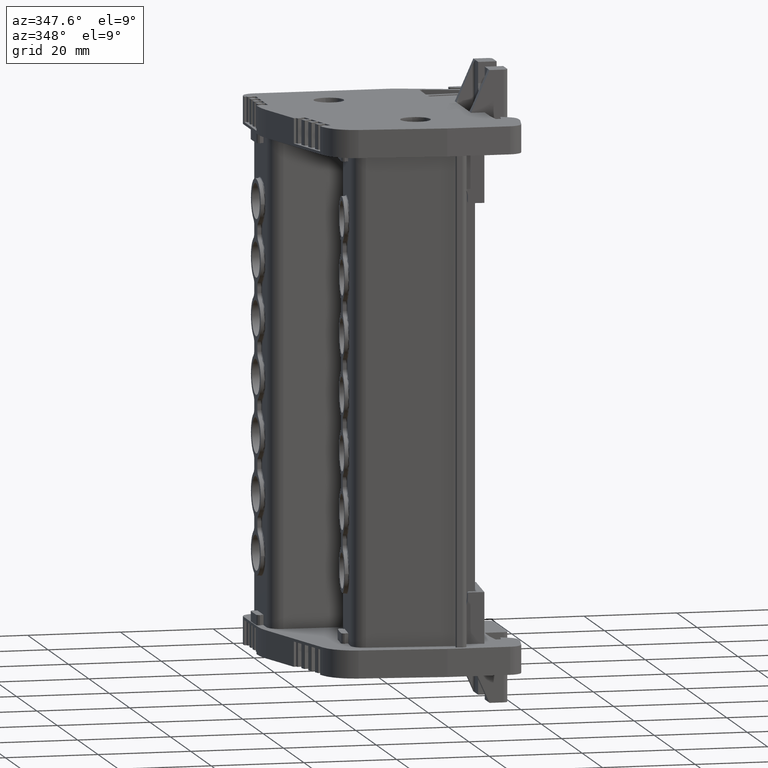
[diagram: clean part render]
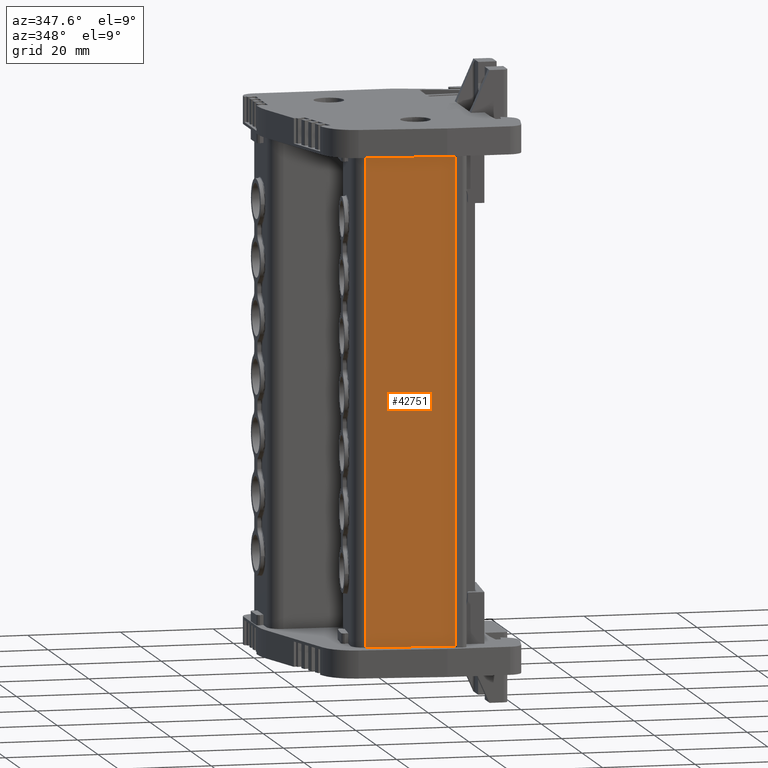
[diagram: same view with one face highlighted and labeled with its STEP entity id]
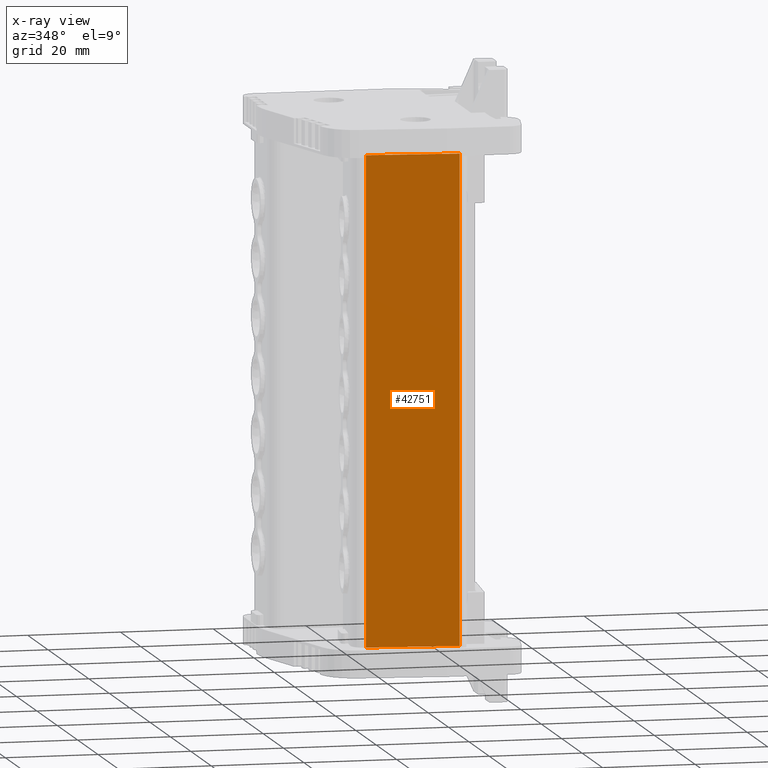
[diagram: x-ray of the same camera — body ghosted, the highlighted face saturated]
A machine part, auxiliary view. The second image highlights one B-rep face of the part: STEP entity #42751.
The next image is the same camera in x-ray: the body ghosted, the highlighted face saturated — about 0% of this face is hidden behind the body in this view.
In plain terms, the highlighted planar face has unit normal (-0.1045, -0.9945, -0).
Its self-contained STEP definition (entity closure, byte-faithful):
#1572 = CARTESIAN_POINT ( 'NONE',  ( 1902.331920234772500, 759.6777147019812400, 111.0203038005997800 ) ) ;
#1600 = CARTESIAN_POINT ( 'NONE',  ( 1882.548481238868100, 761.7570257132908900, 111.0203038005997800 ) ) ;
#1621 = CARTESIAN_POINT ( 'NONE',  ( 1902.331920234774800, 759.6777147020045500, 6.000455880789901100 ) ) ;
#1630 = CARTESIAN_POINT ( 'NONE',  ( 1882.548481238870200, 761.7570257133143100, 6.000455880789984600 ) ) ;
#21764 = VECTOR ( 'NONE', #24418, 1000.000000000000000 ) ;
#21789 = VECTOR ( 'NONE', #24363, 1000.000000000000200 ) ;
#22819 = VECTOR ( 'NONE', #23924, 1000.000000000000200 ) ;
#22894 = VECTOR ( 'NONE', #24193, 1000.000000000000000 ) ;
#23913 = LINE ( 'NONE', #23952, #22819 ) ;
#23924 = DIRECTION ( 'NONE',  ( -0.9945219592039794600, 0.1045278559096953800, 4.433591255884230300E-015 ) ) ;
#23952 = CARTESIAN_POINT ( 'NONE',  ( 1890.866910406003900, 760.8827287133032100, 6.000455880789957100 ) ) ;
#24177 = LINE ( 'NONE', #24200, #22894 ) ;
#24193 = DIRECTION ( 'NONE',  ( 1.899834580507928800E-014, 2.228490473105030800E-013, -1.000000000000000000 ) ) ;
#24200 = CARTESIAN_POINT ( 'NONE',  ( 1902.331920234772700, 759.6777147019812400, 110.6204558807898300 ) ) ;
#24340 = LINE ( 'NONE', #24413, #21789 ) ;
#24363 = DIRECTION ( 'NONE',  ( 0.9945219592039794600, -0.1045278559096953900, 0.0000000000000000000 ) ) ;
#24413 = CARTESIAN_POINT ( 'NONE',  ( 1890.866910406001800, 760.8827287132797900, 111.0203038005997800 ) ) ;
#24418 = DIRECTION ( 'NONE',  ( 1.899834580507928800E-014, 2.228490473105030800E-013, -1.000000000000000000 ) ) ;
#24434 = CARTESIAN_POINT ( 'NONE',  ( 1882.548481238868100, 761.7570257132910000, 110.6204558807898200 ) ) ;
#24444 = LINE ( 'NONE', #24434, #21764 ) ;
#27392 = AXIS2_PLACEMENT_3D ( 'NONE', #29044, #29032, #29039 ) ;
#29031 = PLANE ( 'NONE',  #27392 ) ;
#29032 = DIRECTION ( 'NONE',  ( -0.1045278559096954200, -0.9945219592039795700, -2.236141274930544100E-013 ) ) ;
#29039 = DIRECTION ( 'NONE',  ( 0.9945219592039795700, -0.1045278559096954200, -3.517428196429380800E-015 ) ) ;
#29044 = CARTESIAN_POINT ( 'NONE',  ( 1890.866910406001800, 760.8827287132799000, 110.6204558807899000 ) ) ;
#29048 = FACE_OUTER_BOUND ( 'NONE', #39923, .T. ) ;
#39923 = EDGE_LOOP ( 'NONE', ( #51433, #51448, #51454, #51435 ) ) ;
#41973 = EDGE_CURVE ( 'NONE', #58855, #58868, #23913, .T. ) ;
#42019 = EDGE_CURVE ( 'NONE', #58863, #58855, #24177, .T. ) ;
#42064 = EDGE_CURVE ( 'NONE', #58895, #58863, #24340, .T. ) ;
#42074 = EDGE_CURVE ( 'NONE', #58895, #58868, #24444, .T. ) ;
#42751 = ADVANCED_FACE ( 'NONE', ( #29048 ), #29031, .T. ) ;
#51433 = ORIENTED_EDGE ( 'NONE', *, *, #42064, .F. ) ;
#51435 = ORIENTED_EDGE ( 'NONE', *, *, #42019, .F. ) ;
#51448 = ORIENTED_EDGE ( 'NONE', *, *, #42074, .T. ) ;
#51454 = ORIENTED_EDGE ( 'NONE', *, *, #41973, .F. ) ;
#58855 = VERTEX_POINT ( 'NONE', #1621 ) ;
#58863 = VERTEX_POINT ( 'NONE', #1572 ) ;
#58868 = VERTEX_POINT ( 'NONE', #1630 ) ;
#58895 = VERTEX_POINT ( 'NONE', #1600 ) ;